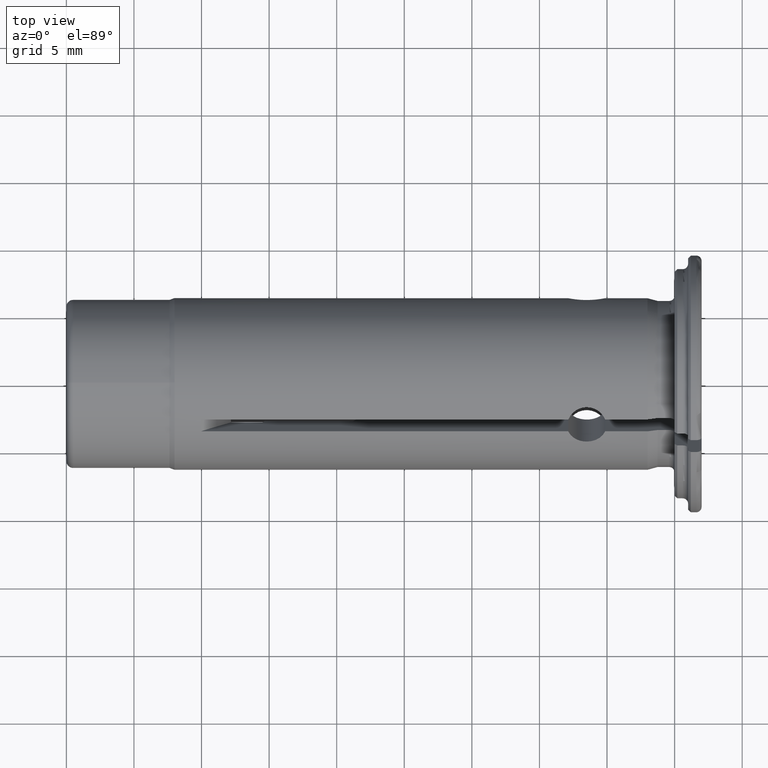
[diagram: clean part render]
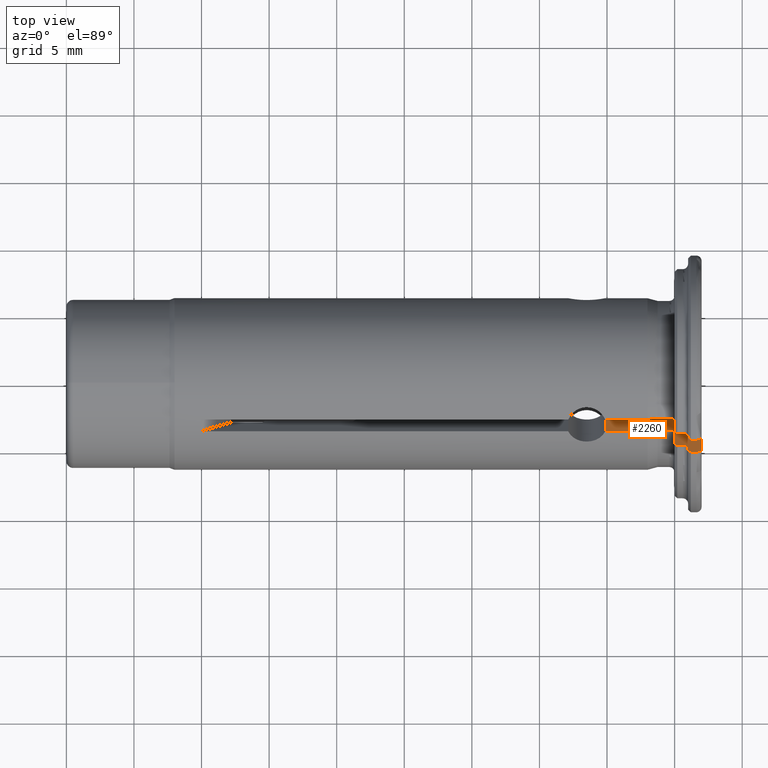
[diagram: same view with one face highlighted and labeled with its STEP entity id]
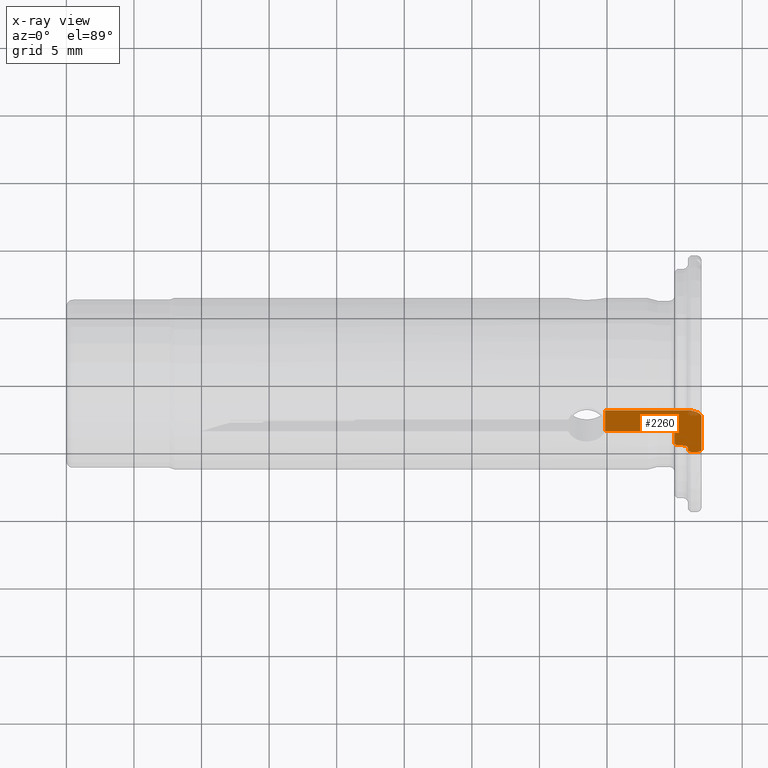
[diagram: x-ray of the same camera — body ghosted, the highlighted face saturated]
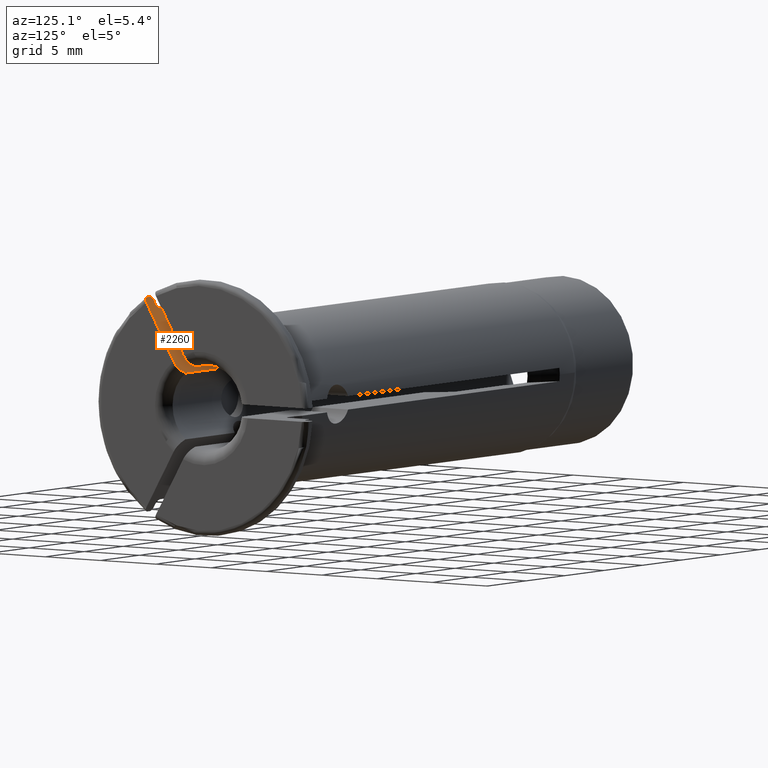
[diagram: same view with one face highlighted and labeled with its STEP entity id]
A machine part, top view. The second image highlights one B-rep face of the part: STEP entity #2260.
The next image is the same camera in x-ray: the body ghosted, the highlighted face saturated — about 2% of this face is hidden behind the body in this view.
A second angle (auxiliary view) of the same face is appended — the face is thin or edge-on in the first view.
In plain terms, the highlighted planar face has unit normal (0, -0.866, -0.5).
Its self-contained STEP definition (entity closure, byte-faithful):
#33=DIRECTION('',(1.E0,0.E0,0.E0));
#34=VECTOR('',#33,3.138934241118E0);
#35=CARTESIAN_POINT('',(-5.138934241118E0,-3.598154878794E0,5.232187063572E0));
#36=LINE('',#35,#34);
#112=DIRECTION('',(0.E0,5.E-1,-8.660254037844E-1));
#113=VECTOR('',#112,3.194901602048E0);
#114=CARTESIAN_POINT('',(-5.138934241118E0,-3.598154878794E0,5.232187063572E0));
#115=LINE('',#114,#113);
#499=DIRECTION('',(-1.E0,0.E0,0.E0));
#500=VECTOR('',#499,6.338899973102E0);
#501=CARTESIAN_POINT('',(1.199965731984E0,-2.000704077769E0,2.465321113607E0));
#502=LINE('',#501,#500);
#660=DIRECTION('',(0.E0,5.E-1,-8.660254037844E-1));
#661=VECTOR('',#660,4.901769474549E0);
#662=CARTESIAN_POINT('',(2.E0,-4.976139378532E0,7.618926229162E0));
#663=LINE('',#662,#661);
#720=CARTESIAN_POINT('',(2.E0,-4.976139378532E0,7.618926229162E0));
#721=CARTESIAN_POINT('',(2.E0,-4.991340232348E0,7.645254880289E0));
#722=CARTESIAN_POINT('',(1.993286258666E0,-5.020904290668E0,7.696461331377E0));
#723=CARTESIAN_POINT('',(1.963470576407E0,-5.063766692360E0,7.770701188843E0));
#724=CARTESIAN_POINT('',(1.915386885562E0,-5.102059244787E0,7.837025835198E0));
#725=CARTESIAN_POINT('',(1.851469029195E0,-5.134064527993E0,7.892460611821E0));
#726=CARTESIAN_POINT('',(1.774970459210E0,-5.158145558503E0,7.934170180162E0));
#727=CARTESIAN_POINT('',(1.689370083119E0,-5.173070032058E0,7.960020126636E0));
#728=CARTESIAN_POINT('',(1.630344838883E0,-5.176429192145E0,7.965838362577E0));
#729=CARTESIAN_POINT('',(1.6E0,-5.176429192145E0,7.965838362577E0));
#780=DIRECTION('',(1.E0,0.E0,0.E0));
#781=VECTOR('',#780,4.E-1);
#782=CARTESIAN_POINT('',(1.2E0,-5.176429192145E0,7.965838362577E0));
#783=LINE('',#782,#781);
#828=CARTESIAN_POINT('',(1.2E0,-5.176429192145E0,7.965838362577E0));
#829=CARTESIAN_POINT('',(1.177723433932E0,-5.165275450001E0,7.946519514491E0));
#830=CARTESIAN_POINT('',(1.133206525136E0,-5.142985884576E0,7.907912854696E0));
#831=CARTESIAN_POINT('',(1.066539659054E0,-5.109605195665E0,7.850095805509E0));
#832=CARTESIAN_POINT('',(1.022167787813E0,-5.087387356147E0,7.811613378630E0));
#833=CARTESIAN_POINT('',(1.E0,-5.076287408390E0,7.792387705153E0));
#876=DIRECTION('',(0.E0,5.E-1,-8.660254037844E-1));
#877=VECTOR('',#876,4.006054563859E-1);
#878=CARTESIAN_POINT('',(1.E0,-5.076287408390E0,7.792387705153E0));
#879=LINE('',#878,#877);
#936=CARTESIAN_POINT('',(1.E0,-4.875984680197E0,7.445453203028E0));
#937=CARTESIAN_POINT('',(1.E0,-4.860793165617E0,7.419140727933E0));
#938=CARTESIAN_POINT('',(9.932948866413E-1,-4.831242484353E0,7.367957446584E0));
#939=CARTESIAN_POINT('',(9.635087372822E-1,-4.788387513277E0,7.293730459324E0));
#940=CARTESIAN_POINT('',(9.154423062143E-1,-4.750080016067E0,7.227379927846E0));
#941=CARTESIAN_POINT('',(8.515413246439E-1,-4.718061223678E0,7.171921752631E0));
#942=CARTESIAN_POINT('',(7.750631101954E-1,-4.693965063710E0,7.130185979300E0));
#943=CARTESIAN_POINT('',(6.894352010384E-1,-4.679019200388E0,7.104298984662E0));
#944=CARTESIAN_POINT('',(6.303706537129E-1,-4.675653389012E0,7.098469228350E0));
#945=CARTESIAN_POINT('',(6.E-1,-4.675653389012E0,7.098469228350E0));
#996=DIRECTION('',(1.E0,0.E0,0.E0));
#997=VECTOR('',#996,4.E-1);
#998=CARTESIAN_POINT('',(2.E-1,-4.675653389012E0,7.098469228350E0));
#999=LINE('',#998,#997);
#1044=CARTESIAN_POINT('',(2.E-1,-4.675653389012E0,7.098469228350E0));
#1045=CARTESIAN_POINT('',(1.777168441976E-1,-4.664492484855E0,
7.079137975292E0));
#1046=CARTESIAN_POINT('',(1.331911464667E-1,-4.642190713937E0,
7.040510174963E0));
#1047=CARTESIAN_POINT('',(6.652422885453E-2,-4.608798046355E0,
6.982672378111E0));
#1048=CARTESIAN_POINT('',(2.216117370790E-2,-4.586576484655E0,
6.944183504223E0));
#1049=CARTESIAN_POINT('',(0.E0,-4.575475737334E0,6.924956445861E0));
#1092=DIRECTION('',(0.E0,5.E-1,-8.660254037844E-1));
#1093=VECTOR('',#1092,1.754037923012E0);
#1094=CARTESIAN_POINT('',(0.E0,-4.575475737334E0,6.924956445861E0));
#1095=LINE('',#1094,#1093);
#1152=CARTESIAN_POINT('',(0.E0,-3.698456775828E0,5.405915045331E0));
#1153=CARTESIAN_POINT('',(0.E0,-3.683243054068E0,5.379564106271E0));
#1154=CARTESIAN_POINT('',(-6.707107535249E-3,-3.653650691543E0,
5.328308630861E0));
#1155=CARTESIAN_POINT('',(-3.648802279971E-2,-3.610743386214E0,
5.253990998015E0));
#1156=CARTESIAN_POINT('',(-8.453848785330E-2,-3.572387725425E0,
5.187557044772E0));
#1157=CARTESIAN_POINT('',(-1.484207500216E-1,-3.540322904425E0,
5.132019145664E0));
#1158=CARTESIAN_POINT('',(-2.248909824959E-1,-3.516184577830E0,
5.090210337591E0));
#1159=CARTESIAN_POINT('',(-3.105303630011E-1,-3.501207435010E0,
5.064269165275E0));
#1160=CARTESIAN_POINT('',(-3.696156837815E-1,-3.497833251288E0,
5.058424907635E0));
#1161=CARTESIAN_POINT('',(-4.E-1,-3.497833251288E0,5.058424907635E0));
#1222=DIRECTION('',(1.E0,0.E0,0.E0));
#1223=VECTOR('',#1222,8.535898384862E-1);
#1224=CARTESIAN_POINT('',(-1.253589838486E0,-3.497833251288E0,
5.058424907635E0));
#1225=LINE('',#1224,#1223);
#1260=CARTESIAN_POINT('',(-2.E0,-3.598154878794E0,5.232187063572E0));
#1261=CARTESIAN_POINT('',(-1.916760964656E0,-3.586968230044E0,
5.212811219572E0));
#1262=CARTESIAN_POINT('',(-1.750485914192E0,-3.564621481476E0,
5.174105515667E0));
#1263=CARTESIAN_POINT('',(-1.501680880002E0,-3.531180746163E0,
5.116184463063E0));
#1264=CARTESIAN_POINT('',(-1.336218997505E0,-3.508940227933E0,
5.077662755502E0));
#1265=CARTESIAN_POINT('',(-1.253589838486E0,-3.497833251288E0,
5.058424907635E0));
#1452=CARTESIAN_POINT('',(1.5E0,-2.088353282356E0,2.617133989193E0));
#1453=CARTESIAN_POINT('',(1.543588892621E0,-2.101079005559E0,2.639175588344E0));
#1454=CARTESIAN_POINT('',(1.625887681760E0,-2.129477366823E0,2.688362992906E0));
#1455=CARTESIAN_POINT('',(1.736244553546E0,-2.181227537368E0,2.777996917589E0));
#1456=CARTESIAN_POINT('',(1.829688654480E0,-2.240497012325E0,2.880654659553E0));
#1457=CARTESIAN_POINT('',(1.904583905254E0,-2.306044661908E0,2.994186518947E0));
#1458=CARTESIAN_POINT('',(1.959292295936E0,-2.376441635279E0,3.116117653526E0));
#1459=CARTESIAN_POINT('',(1.992529795163E0,-2.450066145356E0,3.243639045661E0));
#1460=CARTESIAN_POINT('',(2.E0,-2.499979945831E0,3.330092284083E0));
#1461=CARTESIAN_POINT('',(2.E0,-2.525254641258E0,3.373869340708E0));
#1526=CARTESIAN_POINT('',(1.5E0,-2.088353282356E0,2.617133989193E0));
#1527=CARTESIAN_POINT('',(1.466452902639E0,-2.078559248839E0,2.600170225532E0));
#1528=CARTESIAN_POINT('',(1.399498512952E0,-2.059008121841E0,2.566306680226E0));
#1529=CARTESIAN_POINT('',(1.299485072296E0,-2.029791390904E0,2.515701817812E0));
#1530=CARTESIAN_POINT('',(1.233091903938E0,-2.010387609804E0,2.482093483088E0));
#1531=CARTESIAN_POINT('',(1.199965731984E0,-2.000704077769E0,2.465321113607E0));
#1841=CARTESIAN_POINT('',(-5.138934241118E0,-3.598154878794E0,
5.232187063572E0));
#1842=CARTESIAN_POINT('',(-2.E0,-3.598154878794E0,5.232187063572E0));
#1843=VERTEX_POINT('',#1841);
#1844=VERTEX_POINT('',#1842);
#1849=CARTESIAN_POINT('',(2.E0,-4.976139378532E0,7.618926229162E0));
#1850=CARTESIAN_POINT('',(2.E0,-2.525254641258E0,3.373869340708E0));
#1851=VERTEX_POINT('',#1849);
#1852=VERTEX_POINT('',#1850);
#1857=CARTESIAN_POINT('',(1.2E0,-5.176429192145E0,7.965838362577E0));
#1858=CARTESIAN_POINT('',(1.6E0,-5.176429192145E0,7.965838362577E0));
#1859=VERTEX_POINT('',#1857);
#1860=VERTEX_POINT('',#1858);
#1865=CARTESIAN_POINT('',(0.E0,-4.575475737334E0,6.924956445861E0));
#1866=CARTESIAN_POINT('',(0.E0,-3.698456775828E0,5.405915045331E0));
#1867=VERTEX_POINT('',#1865);
#1868=VERTEX_POINT('',#1866);
#1873=CARTESIAN_POINT('',(2.E-1,-4.675653389012E0,7.098469228350E0));
#1874=CARTESIAN_POINT('',(6.E-1,-4.675653389012E0,7.098469228350E0));
#1875=VERTEX_POINT('',#1873);
#1876=VERTEX_POINT('',#1874);
#1881=CARTESIAN_POINT('',(1.E0,-5.076287408390E0,7.792387705153E0));
#1882=CARTESIAN_POINT('',(1.E0,-4.875984680197E0,7.445453203028E0));
#1883=VERTEX_POINT('',#1881);
#1884=VERTEX_POINT('',#1882);
#1907=CARTESIAN_POINT('',(1.199965731984E0,-2.000704077769E0,2.465321113607E0));
#1908=CARTESIAN_POINT('',(-5.138934241118E0,-2.000704077769E0,
2.465321113607E0));
#1909=VERTEX_POINT('',#1907);
#1910=VERTEX_POINT('',#1908);
#1914=VERTEX_POINT('',#1526);
#1916=VERTEX_POINT('',#1265);
#1919=CARTESIAN_POINT('',(-4.E-1,-3.497833251288E0,5.058424907635E0));
#1920=VERTEX_POINT('',#1919);
#2221=CARTESIAN_POINT('',(0.E0,-4.330127018922E-1,-2.5E-1));
#2222=DIRECTION('',(0.E0,-8.660254037844E-1,-5.E-1));
#2223=DIRECTION('',(1.E0,0.E0,0.E0));
#2224=AXIS2_PLACEMENT_3D('',#2221,#2222,#2223);
#2225=PLANE('',#2224);
#2226=ORIENTED_EDGE('',*,*,#2062,.F.);
#2227=ORIENTED_EDGE('',*,*,#2160,.T.);
#2229=ORIENTED_EDGE('',*,*,#2228,.F.);
#2231=ORIENTED_EDGE('',*,*,#2230,.F.);
#2233=ORIENTED_EDGE('',*,*,#2232,.T.);
#2235=ORIENTED_EDGE('',*,*,#2234,.F.);
#2237=ORIENTED_EDGE('',*,*,#2236,.T.);
#2239=ORIENTED_EDGE('',*,*,#2238,.F.);
#2241=ORIENTED_EDGE('',*,*,#2240,.T.);
#2243=ORIENTED_EDGE('',*,*,#2242,.T.);
#2245=ORIENTED_EDGE('',*,*,#2244,.T.);
#2247=ORIENTED_EDGE('',*,*,#2246,.F.);
#2249=ORIENTED_EDGE('',*,*,#2248,.T.);
#2251=ORIENTED_EDGE('',*,*,#2250,.T.);
#2253=ORIENTED_EDGE('',*,*,#2252,.T.);
#2255=ORIENTED_EDGE('',*,*,#2254,.F.);
#2257=ORIENTED_EDGE('',*,*,#2256,.F.);
#2258=EDGE_LOOP('',(#2226,#2227,#2229,#2231,#2233,#2235,#2237,#2239,#2241,#2243,
#2245,#2247,#2249,#2251,#2253,#2255,#2257));
#2259=FACE_OUTER_BOUND('',#2258,.F.);
#2260=ADVANCED_FACE('',(#2259),#2225,.F.);
#730=B_SPLINE_CURVE_WITH_KNOTS('',3,(#720,#721,#722,#723,#724,#725,#726,#727,
#728,#729),.UNSPECIFIED.,.F.,.F.,(4,1,1,1,1,1,1,4),(0.E0,1.428571428571E-1,
2.857142857143E-1,4.285714285714E-1,5.714285714286E-1,7.142857142857E-1,
8.571428571429E-1,1.E0),.UNSPECIFIED.);
#834=B_SPLINE_CURVE_WITH_KNOTS('',3,(#828,#829,#830,#831,#832,#833),
.UNSPECIFIED.,.F.,.F.,(4,1,1,4),(0.E0,3.333333333333E-1,6.666666666667E-1,1.E0),
.UNSPECIFIED.);
#946=B_SPLINE_CURVE_WITH_KNOTS('',3,(#936,#937,#938,#939,#940,#941,#942,#943,
#944,#945),.UNSPECIFIED.,.F.,.F.,(4,1,1,1,1,1,1,4),(0.E0,1.428571428571E-1,
2.857142857143E-1,4.285714285714E-1,5.714285714286E-1,7.142857142857E-1,
8.571428571429E-1,1.E0),.UNSPECIFIED.);
#1050=B_SPLINE_CURVE_WITH_KNOTS('',3,(#1044,#1045,#1046,#1047,#1048,#1049),
.UNSPECIFIED.,.F.,.F.,(4,1,1,4),(0.E0,3.333333333333E-1,6.666666666667E-1,1.E0),
.UNSPECIFIED.);
#1162=B_SPLINE_CURVE_WITH_KNOTS('',3,(#1152,#1153,#1154,#1155,#1156,#1157,#1158,
#1159,#1160,#1161),.UNSPECIFIED.,.F.,.F.,(4,1,1,1,1,1,1,4),(0.E0,
1.428571428571E-1,2.857142857143E-1,4.285714285714E-1,5.714285714286E-1,
7.142857142857E-1,8.571428571429E-1,1.E0),.UNSPECIFIED.);
#1266=B_SPLINE_CURVE_WITH_KNOTS('',3,(#1260,#1261,#1262,#1263,#1264,#1265),
.UNSPECIFIED.,.F.,.F.,(4,1,1,4),(0.E0,3.333333333333E-1,6.666666666667E-1,1.E0),
.UNSPECIFIED.);
#1462=B_SPLINE_CURVE_WITH_KNOTS('',3,(#1452,#1453,#1454,#1455,#1456,#1457,#1458,
#1459,#1460,#1461),.UNSPECIFIED.,.F.,.F.,(4,1,1,1,1,1,1,4),(0.E0,
1.428571428571E-1,2.857142857143E-1,4.285714285714E-1,5.714285714286E-1,
7.142857142857E-1,8.571428571429E-1,1.E0),.UNSPECIFIED.);
#1532=B_SPLINE_CURVE_WITH_KNOTS('',3,(#1526,#1527,#1528,#1529,#1530,#1531),
.UNSPECIFIED.,.F.,.F.,(4,1,1,4),(0.E0,3.333333333333E-1,6.666666666667E-1,1.E0),
.UNSPECIFIED.);
#2062=EDGE_CURVE('',#1843,#1844,#36,.T.);
#2160=EDGE_CURVE('',#1843,#1910,#115,.T.);
#2228=EDGE_CURVE('',#1909,#1910,#502,.T.);
#2230=EDGE_CURVE('',#1914,#1909,#1532,.T.);
#2232=EDGE_CURVE('',#1914,#1852,#1462,.T.);
#2234=EDGE_CURVE('',#1851,#1852,#663,.T.);
#2236=EDGE_CURVE('',#1851,#1860,#730,.T.);
#2238=EDGE_CURVE('',#1859,#1860,#783,.T.);
#2240=EDGE_CURVE('',#1859,#1883,#834,.T.);
#2242=EDGE_CURVE('',#1883,#1884,#879,.T.);
#2244=EDGE_CURVE('',#1884,#1876,#946,.T.);
#2246=EDGE_CURVE('',#1875,#1876,#999,.T.);
#2248=EDGE_CURVE('',#1875,#1867,#1050,.T.);
#2250=EDGE_CURVE('',#1867,#1868,#1095,.T.);
#2252=EDGE_CURVE('',#1868,#1920,#1162,.T.);
#2254=EDGE_CURVE('',#1916,#1920,#1225,.T.);
#2256=EDGE_CURVE('',#1844,#1916,#1266,.T.);